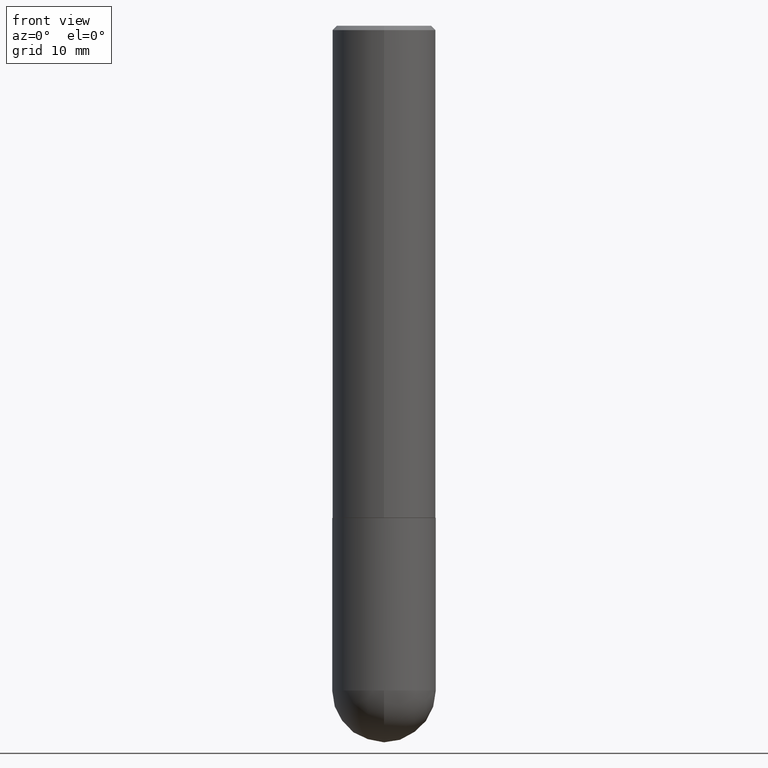
[diagram: clean part render]
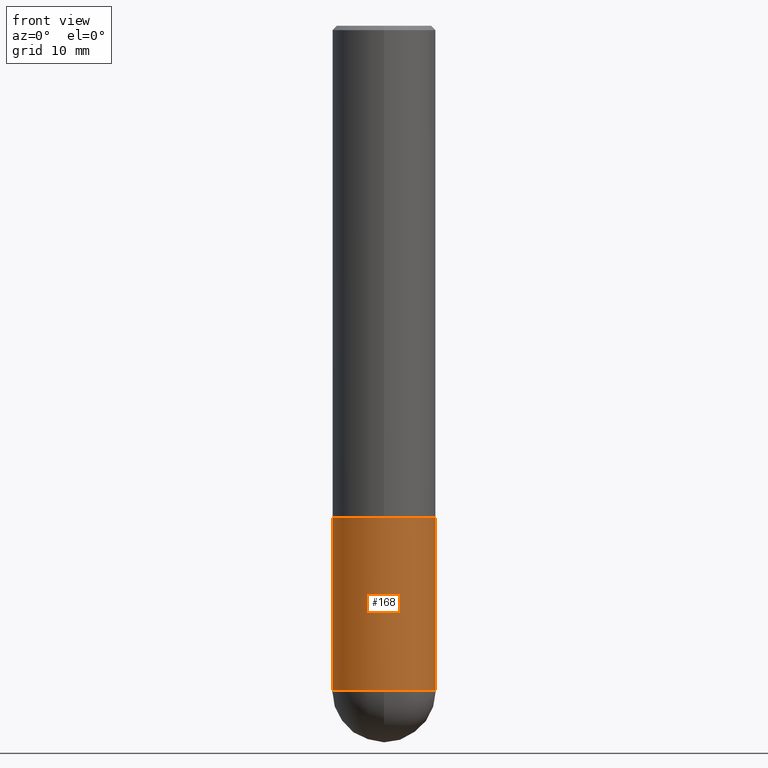
[diagram: same view with one face highlighted and labeled with its STEP entity id]
A machine part, front view. The second image highlights one B-rep face of the part: STEP entity #168.
In plain terms, the highlighted cylindrical surface (partial cylindrical patch) has radius 5.9995 mm, axis along (-0, 0, 1).
Its self-contained STEP definition (entity closure, byte-faithful):
#8 = CARTESIAN_POINT ( 'NONE',  ( -0.2361999999999999933, -7.531527533735092287E-15, -2.244100000000000428 ) ) ;
#16 = DIRECTION ( 'NONE',  ( -2.445468806185136597E-29, 3.491481338843145583E-15, 1.000000000000000000 ) ) ;
#18 = DIRECTION ( 'NONE',  ( 1.000000000000000000, -6.982962677686265133E-15, 0.000000000000000000 ) ) ;
#20 = VERTEX_POINT ( 'NONE', #51 ) ;
#24 = EDGE_CURVE ( 'NONE', #20, #54, #254, .T. ) ;
#28 = DIRECTION ( 'NONE',  ( -2.445468806185136597E-29, 3.491481338843145583E-15, 1.000000000000000000 ) ) ;
#31 = CARTESIAN_POINT ( 'NONE',  ( 0.2361999999999999933, -1.085920526006994836E-14, -3.031499999999999417 ) ) ;
#43 = CARTESIAN_POINT ( 'NONE',  ( -0.2361999999999999933, 1.678301941865356591E-15, -1.161852468318208757E-29 ) ) ;
#51 = CARTESIAN_POINT ( 'NONE',  ( -1.678301941865284805E-15, -0.2362000000000109567, -3.031499999999998529 ) ) ;
#54 = VERTEX_POINT ( 'NONE', #31 ) ;
#59 = VECTOR ( 'NONE', #241, 39.37007874015748143 ) ;
#68 = EDGE_CURVE ( 'NONE', #103, #279, #224, .T. ) ;
#96 = ORIENTED_EDGE ( 'NONE', *, *, #323, .T. ) ;
#101 = CARTESIAN_POINT ( 'NONE',  ( 7.413438685950241710E-29, -1.058442567870299344E-14, -3.031499999999999417 ) ) ;
#103 = VERTEX_POINT ( 'NONE', #8 ) ;
#107 = CYLINDRICAL_SURFACE ( 'NONE', #302, 0.2361999999999999933 ) ;
#116 = LINE ( 'NONE', #359, #59 ) ;
#151 = CARTESIAN_POINT ( 'NONE',  ( -0.2361999999999999933, -7.531527533735093865E-15, -3.031499999999999417 ) ) ;
#168 = ADVANCED_FACE ( 'NONE', ( #298 ), #107, .T. ) ;
#169 = DIRECTION ( 'NONE',  ( -2.445468806185136877E-29, 3.491481338843145188E-15, 1.000000000000000000 ) ) ;
#172 = AXIS2_PLACEMENT_3D ( 'NONE', #101, #28, #345 ) ;
#192 = ORIENTED_EDGE ( 'NONE', *, *, #68, .F. ) ;
#195 = ORIENTED_EDGE ( 'NONE', *, *, #24, .T. ) ;
#224 = CIRCLE ( 'NONE', #248, 0.2361999999999999933 ) ;
#225 = CARTESIAN_POINT ( 'NONE',  ( 5.487876547960065873E-29, -7.835233272497903917E-15, -2.244100000000000428 ) ) ;
#232 = LINE ( 'NONE', #43, #373 ) ;
#241 = DIRECTION ( 'NONE',  ( -2.445468806185136877E-29, 3.491481338843145188E-15, 1.000000000000000000 ) ) ;
#244 = EDGE_CURVE ( 'NONE', #363, #103, #232, .T. ) ;
#248 = AXIS2_PLACEMENT_3D ( 'NONE', #225, #252, #287 ) ;
#252 = DIRECTION ( 'NONE',  ( -2.445468806185136597E-29, 3.491481338843145583E-15, 1.000000000000000000 ) ) ;
#254 = CIRCLE ( 'NONE', #172, 0.2361999999999999933 ) ;
#279 = VERTEX_POINT ( 'NONE', #340 ) ;
#283 = CIRCLE ( 'NONE', #314, 0.2361999999999999933 ) ;
#287 = DIRECTION ( 'NONE',  ( 1.000000000000000000, -6.982962677686269077E-15, 0.000000000000000000 ) ) ;
#298 = FACE_OUTER_BOUND ( 'NONE', #411, .T. ) ;
#301 = EDGE_CURVE ( 'NONE', #363, #20, #283, .T. ) ;
#302 = AXIS2_PLACEMENT_3D ( 'NONE', #385, #351, #394 ) ;
#310 = CARTESIAN_POINT ( 'NONE',  ( 7.413438685950241710E-29, -1.058442567870299344E-14, -3.031499999999999417 ) ) ;
#314 = AXIS2_PLACEMENT_3D ( 'NONE', #310, #16, #18 ) ;
#323 = EDGE_CURVE ( 'NONE', #54, #279, #116, .T. ) ;
#336 = ORIENTED_EDGE ( 'NONE', *, *, #301, .T. ) ;
#340 = CARTESIAN_POINT ( 'NONE',  ( 0.2361999999999999933, -9.484609056967400443E-15, -2.244100000000000428 ) ) ;
#345 = DIRECTION ( 'NONE',  ( 1.000000000000000000, -6.982962677686265133E-15, 0.000000000000000000 ) ) ;
#351 = DIRECTION ( 'NONE',  ( -2.445468806185136597E-29, 3.491481338843145583E-15, 1.000000000000000000 ) ) ;
#359 = CARTESIAN_POINT ( 'NONE',  ( 0.2361999999999999933, -1.649375784469496131E-15, 1.151752954443000088E-29 ) ) ;
#363 = VERTEX_POINT ( 'NONE', #151 ) ;
#373 = VECTOR ( 'NONE', #169, 39.37007874015748143 ) ;
#385 = CARTESIAN_POINT ( 'NONE',  ( 0.000000000000000000, 0.000000000000000000, 0.000000000000000000 ) ) ;
#394 = DIRECTION ( 'NONE',  ( 1.000000000000000000, -6.982962677686266711E-15, 4.876176775795936353E-29 ) ) ;
#404 = ORIENTED_EDGE ( 'NONE', *, *, #244, .F. ) ;
#411 = EDGE_LOOP ( 'NONE', ( #404, #336, #195, #96, #192 ) ) ;